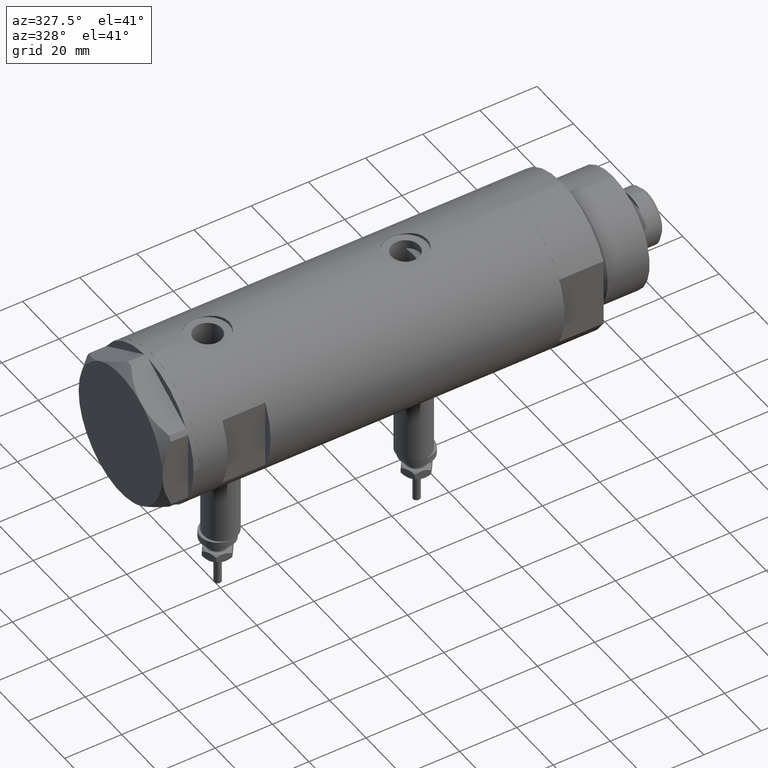
[diagram: clean part render]
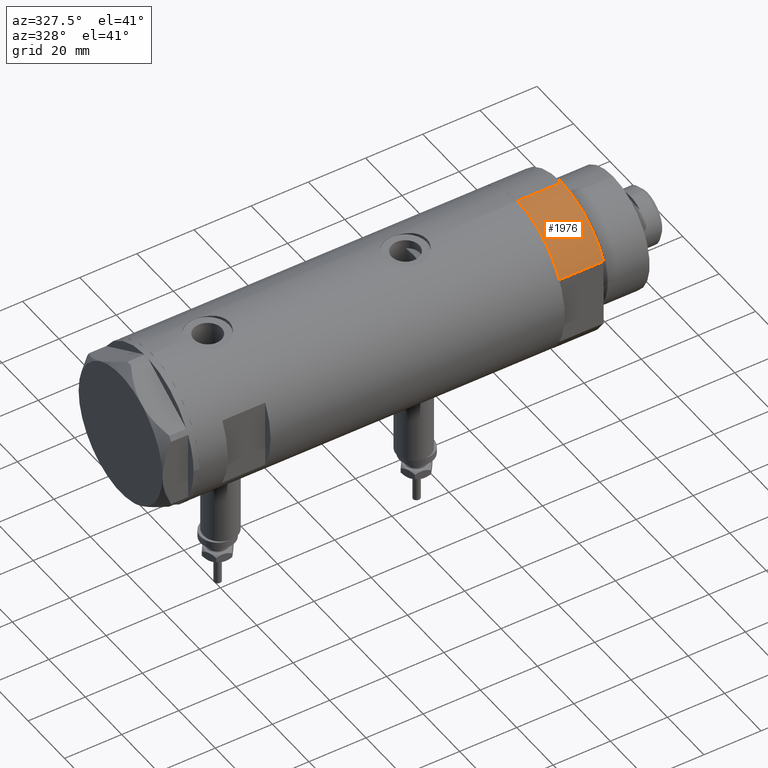
[diagram: same view with one face highlighted and labeled with its STEP entity id]
A machine part, auxiliary view. The second image highlights one B-rep face of the part: STEP entity #1976.
In plain terms, the highlighted cylindrical surface (partial cylindrical patch) has radius 26 mm, axis along (-1, -0, 0).
Its self-contained STEP definition (entity closure, byte-faithful):
#2 = CYLINDRICAL_SURFACE ( 'NONE', #4786, 26.00000000000000355 ) ;
#35 = CARTESIAN_POINT ( 'NONE',  ( -12.12435565298215501, -22.99999999999999645, 0.000000000000000000 ) ) ;
#139 = VERTEX_POINT ( 'NONE', #2958 ) ;
#145 = VERTEX_POINT ( 'NONE', #2472 ) ;
#169 = ORIENTED_EDGE ( 'NONE', *, *, #2440, .T. ) ;
#262 = EDGE_LOOP ( 'NONE', ( #2994, #3987, #169, #2962 ) ) ;
#404 = DIRECTION ( 'NONE',  ( -0.000000000000000000, -0.000000000000000000, 1.000000000000000000 ) ) ;
#514 = DIRECTION ( 'NONE',  ( -1.000000000000000000, 0.000000000000000000, 0.000000000000000000 ) ) ;
#669 = EDGE_CURVE ( 'NONE', #145, #2414, #830, .T. ) ;
#830 = LINE ( 'NONE', #4281, #1084 ) ;
#924 = DIRECTION ( 'NONE',  ( 0.000000000000000000, 0.000000000000000000, 1.000000000000000000 ) ) ;
#925 = EDGE_CURVE ( 'NONE', #145, #139, #3145, .T. ) ;
#980 = DIRECTION ( 'NONE',  ( -0.000000000000000000, -0.000000000000000000, -1.000000000000000000 ) ) ;
#1084 = VECTOR ( 'NONE', #1830, 1000.000000000000000 ) ;
#1088 = AXIS2_PLACEMENT_3D ( 'NONE', #5728, #924, #4812 ) ;
#1089 = AXIS2_PLACEMENT_3D ( 'NONE', #2145, #2113, #5995 ) ;
#1830 = DIRECTION ( 'NONE',  ( -0.000000000000000000, -0.000000000000000000, -1.000000000000000000 ) ) ;
#1893 = CIRCLE ( 'NONE', #1088, 26.00000000000000355 ) ;
#1976 = ADVANCED_FACE ( 'NONE', ( #2433 ), #2, .T. ) ;
#2113 = DIRECTION ( 'NONE',  ( 0.000000000000000000, 0.000000000000000000, 1.000000000000000000 ) ) ;
#2145 = CARTESIAN_POINT ( 'NONE',  ( 0.000000000000000000, 0.000000000000000000, 15.50000000000000000 ) ) ;
#2326 = EDGE_CURVE ( 'NONE', #3513, #139, #4700, .T. ) ;
#2414 = VERTEX_POINT ( 'NONE', #4337 ) ;
#2433 = FACE_OUTER_BOUND ( 'NONE', #262, .T. ) ;
#2440 = EDGE_CURVE ( 'NONE', #2414, #3513, #1893, .T. ) ;
#2472 = CARTESIAN_POINT ( 'NONE',  ( -26.00000000000000355, 0.000000000000000000, 15.50000000000000000 ) ) ;
#2958 = CARTESIAN_POINT ( 'NONE',  ( -12.12435565298215323, -22.99999999999999645, 15.50000000000000000 ) ) ;
#2962 = ORIENTED_EDGE ( 'NONE', *, *, #2326, .T. ) ;
#2994 = ORIENTED_EDGE ( 'NONE', *, *, #925, .F. ) ;
#3145 = CIRCLE ( 'NONE', #1089, 26.00000000000000355 ) ;
#3513 = VERTEX_POINT ( 'NONE', #35 ) ;
#3987 = ORIENTED_EDGE ( 'NONE', *, *, #669, .T. ) ;
#4281 = CARTESIAN_POINT ( 'NONE',  ( -26.00000000000000355, 0.000000000000000000, 15.50000000000000000 ) ) ;
#4337 = CARTESIAN_POINT ( 'NONE',  ( -26.00000000000000355, 0.000000000000000000, 0.000000000000000000 ) ) ;
#4682 = VECTOR ( 'NONE', #404, 1000.000000000000000 ) ;
#4700 = LINE ( 'NONE', #4795, #4682 ) ;
#4786 = AXIS2_PLACEMENT_3D ( 'NONE', #5370, #980, #514 ) ;
#4795 = CARTESIAN_POINT ( 'NONE',  ( -12.12435565298215145, -22.99999999999999645, 0.000000000000000000 ) ) ;
#4812 = DIRECTION ( 'NONE',  ( 1.000000000000000000, 0.000000000000000000, 0.000000000000000000 ) ) ;
#5370 = CARTESIAN_POINT ( 'NONE',  ( 0.000000000000000000, 0.000000000000000000, 15.50000000000000000 ) ) ;
#5728 = CARTESIAN_POINT ( 'NONE',  ( 0.000000000000000000, 0.000000000000000000, 0.000000000000000000 ) ) ;
#5995 = DIRECTION ( 'NONE',  ( 1.000000000000000000, 0.000000000000000000, 0.000000000000000000 ) ) ;